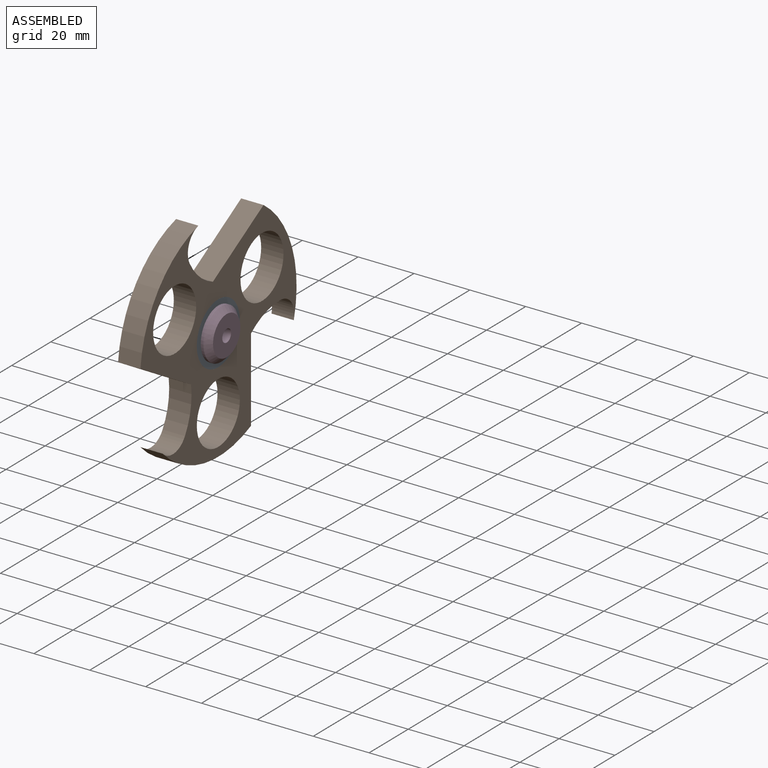
[diagram: assembled view]
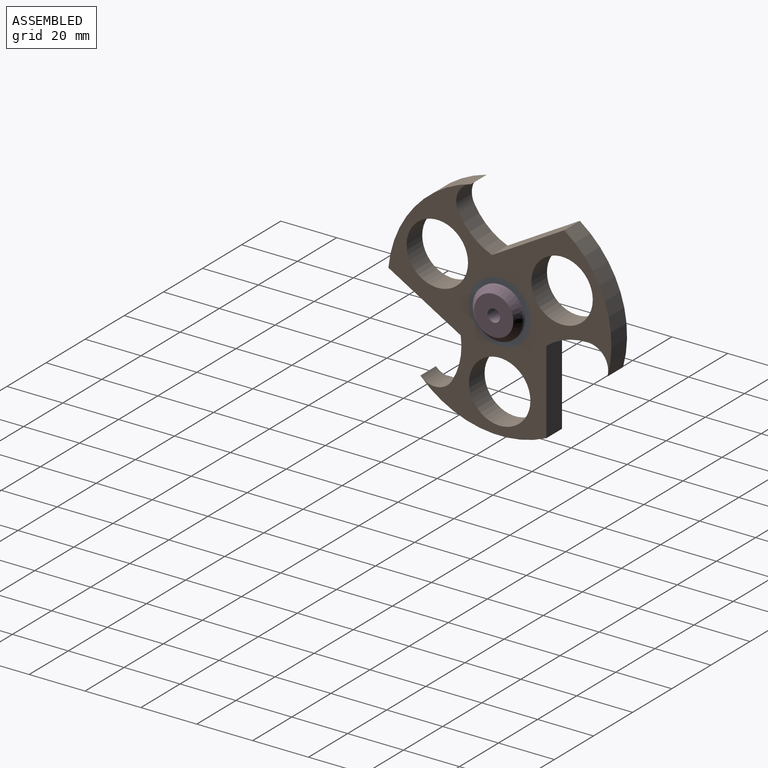
[diagram: assembled view, second angle]
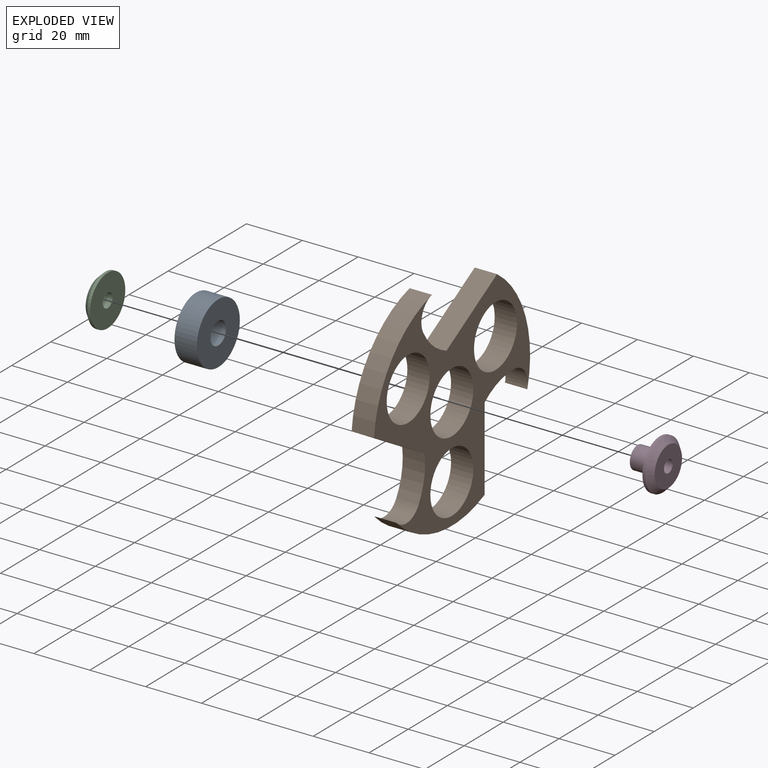
[diagram: exploded view]
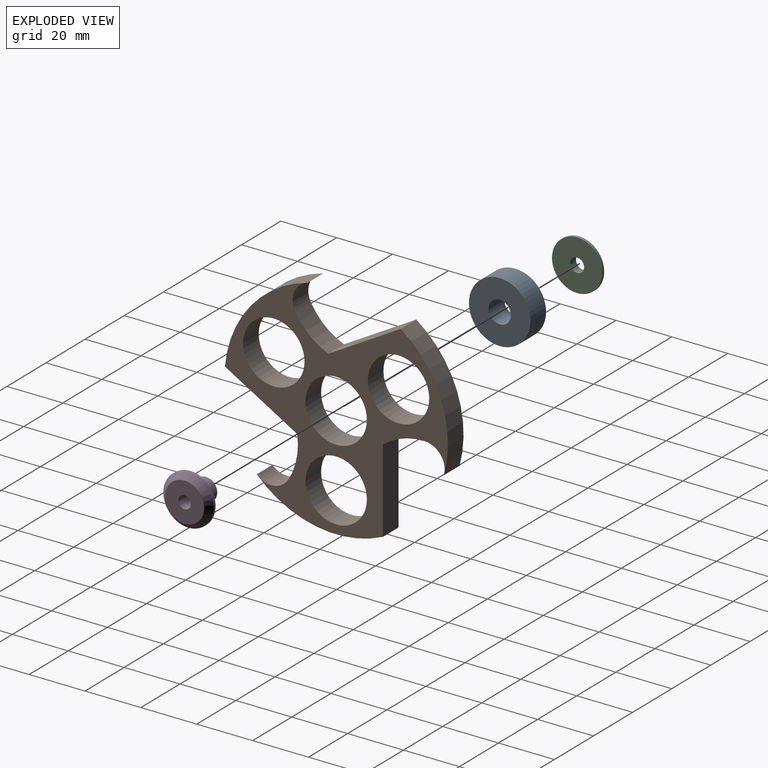
[diagram: exploded view, second angle]
ASSEMBLY  parts=4 mates=3
PART A: 4 faces, bbox 22x22x8 mm
  f0: cylinder r=4mm len=8mm, axis (0,0,1), area 201.1mm2, adj f2,f3
  f1: cylinder r=11mm len=22mm, axis (0,0,1), area 552.9mm2, adj f2,f3
  f2: plane 22x22mm, normal (0,0,-1), area 329.9mm2, adj f0,f1
  f3: plane 22x22mm, normal (0,0,1), area 329.9mm2, adj f0,f1
PART B: 18 faces, bbox 79.8x78.7x8 mm
  f0: cylinder r=7.24mm len=10.5mm, axis (0,0,-1), area 105.3mm2, adj f1,f14,f16,f17
  f1: cylinder r=23.43mm len=11.89mm, axis (0,0,-1), area 129.3mm2, adj f0,f2,f16,f17
  f2: plane 25.89x14.95mm, normal (-0.5,-0.87,0), area 239.1mm2, adj f1,f3,f16,f17
  f3: cylinder r=40mm len=43.19mm, axis (0,0,-1), area 390.9mm2, adj f2,f4,f16,f17
  f4: cylinder r=7.24mm len=9.15mm, axis (0,0,-1), area 105.3mm2, adj f3,f5,f16,f17
  f5: cylinder r=23.43mm len=15.02mm, axis (0,0,-1), area 129.3mm2, adj f4,f6,f16,f17
  f6: plane 29.89x8mm, normal (1,0,0), area 239.1mm2, adj f5,f7,f16,f17
  f7: cylinder r=40mm len=45.14mm, axis (0,0,-1), area 390.9mm2, adj f6,f8,f16,f17
  f8: cylinder r=7.24mm len=11.35mm, axis (0,0,-1), area 105.3mm2, adj f7,f9,f16,f17
  f9: cylinder r=23.43mm len=15.53mm, axis (0,0,-1), area 129.3mm2, adj f8,f10,f16,f17
  f10: plane 25.89x14.95mm, normal (-0.5,0.87,0), area 239.1mm2, adj f9,f14,f16,f17
  f11: cylinder r=11mm len=22mm, axis (0,0,-1), area 552.9mm2, adj f16,f17
  f12: cylinder r=11mm len=22mm, axis (0,0,-1), area 552.9mm2, adj f16,f17
  f13: cylinder r=11mm len=22mm, axis (0,0,-1), area 552.9mm2, adj f16,f17
  f14: cylinder r=40mm len=35mm, axis (0,0,-1), area 390.9mm2, adj f0,f10,f16,f17
  f15: cylinder r=11mm len=22mm, axis (0,0,-1), area 552.9mm2, adj f16,f17
  f16: plane 79.83x78.68mm, normal (0,0,1), area 1901mm2, adj f0,f1,f2,f3,f4,f5,f6,f7
  f17: plane 79.83x78.68mm, normal (0,0,-1), area 1901mm2, adj f0,f1,f2,f3,f4,f5,f6,f7
PART C: 5 faces, bbox 18x18x3 mm
  f0: cylinder r=9mm len=18mm, axis (0,0,1), area 56.5mm2, adj f3,f4
  f1: cylinder r=2.5mm len=5mm, axis (0,0,1), area 47.1mm2, adj f2,f3
  f2: plane 14x14mm, normal (0,0,-1), area 134.3mm2, adj f1,f4
  f3: plane 18x18mm, normal (0,0,1), area 234.8mm2, adj f0,f1
  f4: cone r=7mm half-angle=45deg, axis (0,0,1), area 142.2mm2, adj f0,f2
PART D: 7 faces, bbox 18x18x11 mm
  f0: cylinder r=9mm len=18mm, axis (0,0,-1), area 56.5mm2, adj f3,f6
  f1: cylinder r=2.25mm len=11mm, axis (0,0,-1), area 155.5mm2, adj f2,f4
  f2: plane 14x14mm, normal (0,0,1), area 138mm2, adj f1,f6
  f3: plane 18x18mm, normal (0,0,-1), area 204.2mm2, adj f0,f5
  f4: plane 8x8mm, normal (0,0,-1), area 34.4mm2, adj f1,f5
  f5: cylinder r=4mm len=8mm, axis (0,0,1), area 201.1mm2, adj f3,f4
  f6: cone r=7mm half-angle=45deg, axis (0,0,-1), area 142.2mm2, adj f0,f2
PLACE A rot(axis=(0,1,0),90deg) t=(0,-26.62,61.24)mm
PLACE B rot(axis=(-0.58,-0.58,0.58),120deg) t=(8,-61.24,26.62)mm
PLACE C rot(axis=(0.58,0.58,0.58),120deg) t=(0,-61.24,-26.62)mm
PLACE D rot(axis=(-0.58,0.58,-0.58),120deg) t=(0,61.24,26.62)mm
MATE revolute B.f3 <-> A.f0  axis (-1,0,0) through (0,0,0)mm
MATE fastened A.f0 <-> C.f0  axis (-1,0,0) through (0,0,0)mm
MATE fastened A.f0 <-> D.f0  axis (1,0,0) through (8,0,0)mm
